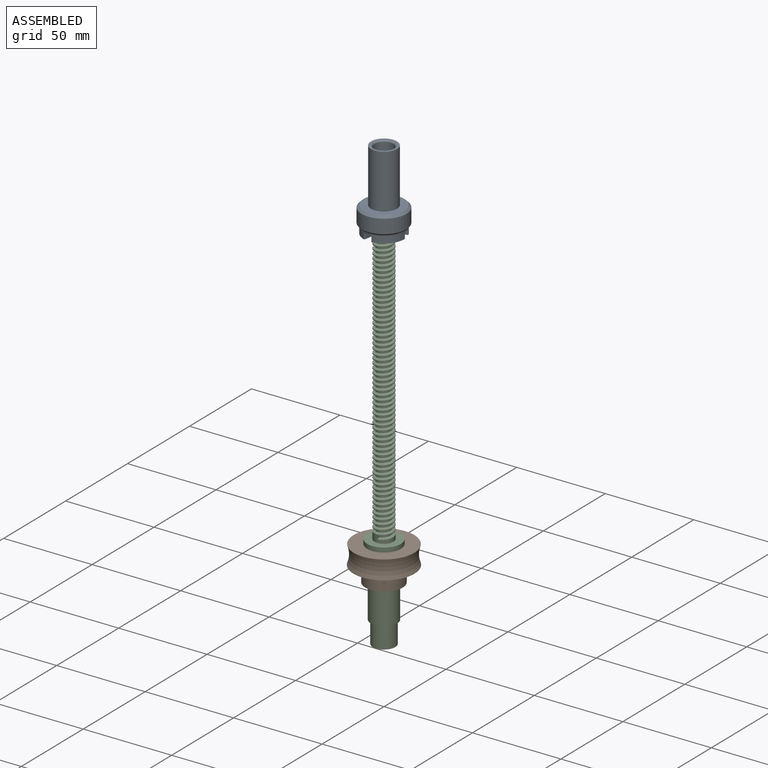
[diagram: assembled view]
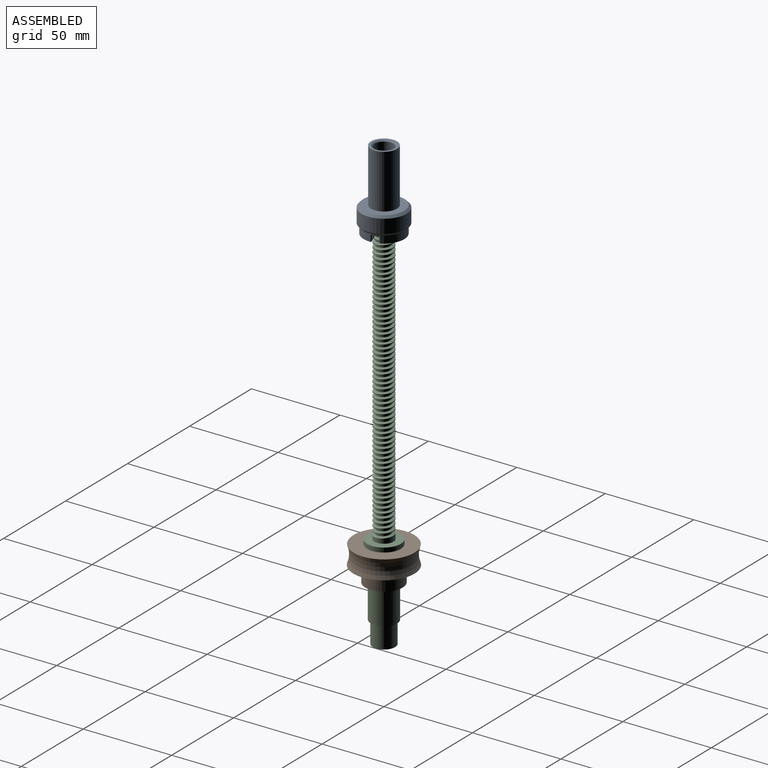
[diagram: assembled view, second angle]
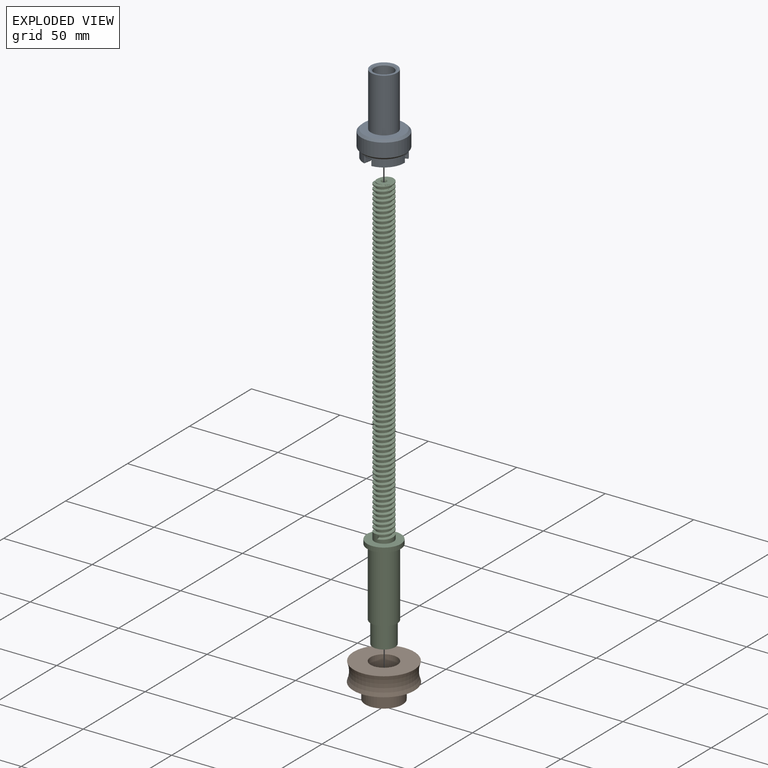
[diagram: exploded view]
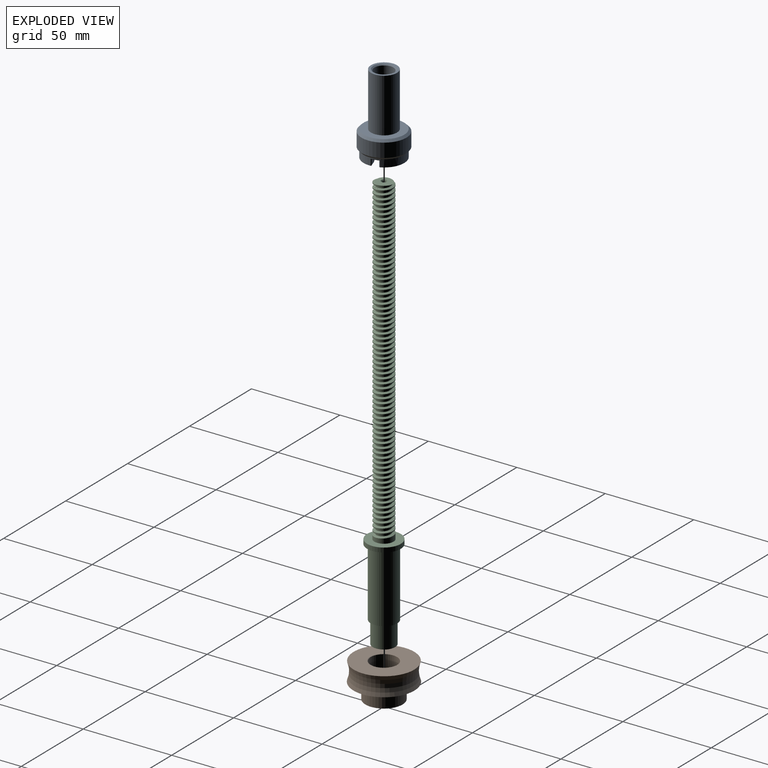
[diagram: exploded view, second angle]
ASSEMBLY  parts=3 mates=2
PART A: 60 faces, bbox 46x25.4x25.4 mm
  f0: cylinder r=11.48mm len=22.96mm, axis (-1,0,0), area 245.8mm2, adj f1,f2,f7,f8,f27,f29,f31,f41
  f1: plane 15.68x9.13mm, normal (-1,0,0), area 60.4mm2, adj f0,f31,f33,f35,f40,f44
  f2: plane 15.81x5.23mm, normal (-1,0,0), area 51.7mm2, adj f0,f4,f25,f27,f37,f41
  f3: cone r=5.38mm half-angle=53.5deg, axis (-1,0,0), area 25.5mm2, adj f6,f32,f35,f39
  f4: cone r=5.38mm half-angle=53.5deg, axis (-1,0,0), area 19.9mm2, adj f2,f6,f24,f25,f37,f38
  f5: cone r=5.38mm half-angle=53.5deg, axis (-1,0,0), area 25.5mm2, adj f6,f54,f55,f59
  f6: cylinder r=5.38mm len=42.62mm, axis (-1,0,0), area 1413.2mm2, adj f3,f4,f5,f9,f24,f26,f28,f30
  f7: cone r=11.48mm half-angle=45deg, axis (1,0,0), area 131mm2, adj f0,f14
  f8: plane 15.68x9.13mm, normal (-1,0,0), area 60.4mm2, adj f0,f49,f52,f53,f56,f59
  f9: cone r=6.07mm half-angle=45deg, axis (1,0,0), area 34.9mm2, adj f6,f10
  f10: plane 14.73x14.73mm, normal (1,0,0), area 54.7mm2, adj f9,f11
  f11: cylinder r=7.37mm len=30.48mm, axis (-1,0,0), area 1410.7mm2, adj f10,f12
  f12: plane 22.96x22.96mm, normal (1,0,0), area 243.6mm2, adj f11,f13
  f13: cone r=12.7mm half-angle=45deg, axis (-1,0,0), area 131mm2, adj f12,f14
  f14: cylinder r=12.7mm len=25.4mm, axis (-1,0,0), area 626.3mm2, adj f7,f13
  f15: plane 5.38x3.7mm, normal (-1,0,0), area 18.9mm2, adj f16,f17,f44,f47,f48,f52
  f16: plane 5.32x2.83mm, normal (0,1,0), area 13.4mm2, adj f15,f47,f51,f52,f55,f56
  f17: plane 5.31x2.83mm, normal (0,-1,0), area 13.4mm2, adj f15,f39,f40,f43,f44,f47
  f18: plane 6.77x5.58mm, normal (-1,0,0), area 18.9mm2, adj f19,f20,f41,f45,f46,f49
  f19: plane 4.47x2.8mm, normal (0,0.5,-0.87), area 13.1mm2, adj f18,f46,f49,f50,f53,f54
  f20: plane 4.82x2.87mm, normal (0,-0.5,0.87), area 14mm2, adj f18,f37,f38,f41,f42,f46
  f21: plane 6.77x5.58mm, normal (-1,0,0), area 18.9mm2, adj f22,f23,f27,f28,f29,f31
  f22: plane 4.47x2.8mm, normal (0,-0.5,-0.87), area 13.1mm2, adj f21,f28,f30,f31,f32,f33
  f23: plane 4.82x2.87mm, normal (0,0.5,0.87), area 14mm2, adj f21,f24,f25,f26,f27,f28
  f24: bspline ~4.4x3.43mm, area 1.8mm2, adj f4,f6,f23,f25,f26
  f25: cylinder r=0.51mm len=3.8mm, axis (0,-0.87,0.5), area 3mm2, adj f2,f4,f23,f24,f27
  f26: cylinder r=0.51mm len=2.14mm, axis (-1,0,0), area 0.9mm2, adj f6,f23,f24,f28
  f27: cylinder r=0.51mm len=3.81mm, axis (-1,0,0), area 3.1mm2, adj f0,f2,f21,f23,f25,f29
  f28: torus R=5.89mm, axis (-1,0,0), area 3.2mm2, adj f6,f21,f22,f23,f26,f30
  f29: torus R=10.97mm, axis (-1,0,0), area 3.5mm2, adj f0,f21,f27,f31
  f30: cylinder r=0.51mm len=2.15mm, axis (-1,0,0), area 1.2mm2, adj f6,f22,f28,f32
  f31: cylinder r=0.51mm len=3.81mm, axis (-1,0,0), area 2.9mm2, adj f0,f1,f21,f22,f29,f33
  f32: bspline ~3.98x3.56mm, area 1.9mm2, adj f3,f6,f22,f30,f34
  f33: cylinder r=0.51mm len=3.49mm, axis (0,0.87,-0.5), area 2.8mm2, adj f1,f22,f31,f34
  f34: sphere r=0.51mm, area 0.1mm2, adj f32,f33,f35
  f35: torus R=7.79mm, axis (1,0,0), area 4mm2, adj f1,f3,f34,f36
  f36: sphere r=0.51mm, area 0.1mm2, adj f35,f39,f40
  f37: cylinder r=0.51mm len=3.8mm, axis (0,-0.87,-0.5), area 3mm2, adj f2,f4,f20,f38,f41
  f38: bspline ~4.69x3.65mm, area 1.8mm2, adj f4,f6,f20,f37,f42
  f39: bspline ~4.46x3.33mm, area 1.8mm2, adj f3,f6,f17,f36,f43
  f40: cylinder r=0.51mm len=3.8mm, axis (0,0,-1), area 2.8mm2, adj f1,f17,f36,f44
  f41: cylinder r=0.51mm len=3.81mm, axis (-1,0,0), area 3.1mm2, adj f0,f2,f18,f20,f37,f45
  f42: cylinder r=0.51mm len=2.14mm, axis (-1,0,0), area 0.9mm2, adj f6,f20,f38,f46
  f43: cylinder r=0.51mm len=2.14mm, axis (-1,0,0), area 1.1mm2, adj f6,f17,f39,f47
  f44: cylinder r=0.51mm len=3.81mm, axis (-1,0,0), area 3mm2, adj f0,f1,f15,f17,f40,f48
  f45: torus R=10.97mm, axis (-1,0,0), area 3.5mm2, adj f0,f18,f41,f49
  f46: torus R=5.89mm, axis (-1,0,0), area 3.2mm2, adj f6,f18,f19,f20,f42,f50
  f47: torus R=5.89mm, axis (-1,0,0), area 3.2mm2, adj f6,f15,f16,f17,f43,f51
  f48: torus R=10.97mm, axis (-1,0,0), area 3.5mm2, adj f0,f15,f44,f52
  f49: cylinder r=0.51mm len=3.81mm, axis (-1,0,0), area 2.9mm2, adj f0,f8,f18,f19,f45,f53
  f50: cylinder r=0.51mm len=2.15mm, axis (-1,0,0), area 1.2mm2, adj f6,f19,f46,f54
  f51: cylinder r=0.51mm len=2.14mm, axis (-1,0,0), area 1.1mm2, adj f6,f16,f47,f55
  f52: cylinder r=0.51mm len=3.81mm, axis (-1,0,0), area 3mm2, adj f0,f8,f15,f16,f48,f56
  f53: cylinder r=0.51mm len=3.49mm, axis (0,0.87,0.5), area 2.8mm2, adj f8,f19,f49,f57
  f54: bspline ~3.98x3.56mm, area 1.9mm2, adj f5,f6,f19,f50,f57
  f55: bspline ~4.68x3.49mm, area 1.8mm2, adj f5,f6,f16,f51,f58
  f56: cylinder r=0.51mm len=3.8mm, axis (0,0,1), area 2.8mm2, adj f8,f16,f52,f58
  f57: sphere r=0.51mm, area 0.1mm2, adj f53,f54,f59
  f58: sphere r=0.51mm, area 0.1mm2, adj f55,f56,f59
  f59: torus R=7.79mm, axis (1,0,0), area 4mm2, adj f5,f8,f57,f58
PART B: 7 faces, bbox 44.3x24.9x44.3 mm
  f0: plane 34.21x34.21mm, normal (0,1,0), area 730.4mm2, adj f1,f6
  f1: torus R=31.02mm, axis (0,-1,0), area 1131.6mm2, adj f0,f2
  f2: plane 34.44x34.44mm, normal (0,-1,0), area 582.6mm2, adj f1,f3
  f3: cylinder r=10.54mm len=21.08mm, axis (0,-1,0), area 588.8mm2, adj f2,f4
  f4: plane 21.08x21.08mm, normal (0,-1,0), area 172.6mm2, adj f3,f5
  f5: cylinder r=7.5mm len=19.41mm, axis (0,-1,0), area 914.2mm2, adj f4,f6
  f6: cone r=7.75mm half-angle=60deg, axis (0,1,0), area 14mm2, adj f0,f5
PART C: 89 faces, bbox 237.8x19.5x19.5 mm
  f0: cylinder r=5.37mm len=10.74mm, axis (1,0,0), area 118.2mm2, adj f70,f74,f86,f87,f88
  f1: cylinder r=5.37mm len=10.74mm, axis (1,0,0), area 11.3mm2, adj f2,f73,f86,f87
  f2: cylinder r=5.37mm len=10.74mm, axis (1,0,0), area 17.8mm2, adj f1,f3,f86,f87
  f3: cylinder r=5.37mm len=10.74mm, axis (1,0,0), area 17.8mm2, adj f2,f4,f86,f87
  f4: cylinder r=5.37mm len=10.74mm, axis (1,0,0), area 17.8mm2, adj f3,f5,f86,f87
  f5: cylinder r=5.37mm len=10.74mm, axis (1,0,0), area 17.8mm2, adj f4,f6,f86,f87
  f6: cylinder r=5.37mm len=10.74mm, axis (1,0,0), area 17.8mm2, adj f5,f7,f86,f87
  f7: cylinder r=5.37mm len=10.74mm, axis (1,0,0), area 17.8mm2, adj f6,f8,f86,f87
  f8: cylinder r=5.37mm len=10.74mm, axis (1,0,0), area 17.8mm2, adj f7,f9,f86,f87
  f9: cylinder r=5.37mm len=10.74mm, axis (1,0,0), area 17.8mm2, adj f8,f10,f86,f87
  f10: cylinder r=5.37mm len=10.74mm, axis (1,0,0), area 17.8mm2, adj f9,f11,f86,f87
  f11: cylinder r=5.37mm len=10.74mm, axis (1,0,0), area 17.8mm2, adj f10,f12,f86,f87
  f12: cylinder r=5.37mm len=10.74mm, axis (1,0,0), area 17.8mm2, adj f11,f13,f86,f87
  f13: cylinder r=5.37mm len=10.74mm, axis (1,0,0), area 17.8mm2, adj f12,f14,f86,f87
  f14: cylinder r=5.37mm len=10.74mm, axis (1,0,0), area 17.8mm2, adj f13,f15,f86,f87
  f15: cylinder r=5.37mm len=10.74mm, axis (1,0,0), area 17.8mm2, adj f14,f16,f86,f87
  f16: cylinder r=5.37mm len=10.74mm, axis (1,0,0), area 17.8mm2, adj f15,f17,f86,f87
  f17: cylinder r=5.37mm len=10.74mm, axis (1,0,0), area 17.8mm2, adj f16,f18,f86,f87
  f18: cylinder r=5.37mm len=10.74mm, axis (1,0,0), area 17.8mm2, adj f17,f19,f86,f87
  f19: cylinder r=5.37mm len=10.74mm, axis (1,0,0), area 17.8mm2, adj f18,f20,f86,f87
  f20: cylinder r=5.37mm len=10.74mm, axis (1,0,0), area 17.8mm2, adj f19,f21,f86,f87
  f21: cylinder r=5.37mm len=10.74mm, axis (1,0,0), area 17.8mm2, adj f20,f22,f86,f87
  f22: cylinder r=5.37mm len=10.74mm, axis (1,0,0), area 17.8mm2, adj f21,f23,f86,f87
  f23: cylinder r=5.37mm len=10.74mm, axis (1,0,0), area 17.8mm2, adj f22,f24,f86,f87
  f24: cylinder r=5.37mm len=10.74mm, axis (1,0,0), area 17.8mm2, adj f23,f25,f86,f87
  f25: cylinder r=5.37mm len=10.74mm, axis (1,0,0), area 17.8mm2, adj f24,f26,f86,f87
  f26: cylinder r=5.37mm len=10.74mm, axis (1,0,0), area 17.8mm2, adj f25,f27,f86,f87
  f27: cylinder r=5.37mm len=10.74mm, axis (1,0,0), area 17.8mm2, adj f26,f28,f86,f87
  f28: cylinder r=5.37mm len=10.74mm, axis (1,0,0), area 17.8mm2, adj f27,f29,f86,f87
  f29: cylinder r=5.37mm len=10.74mm, axis (1,0,0), area 17.8mm2, adj f28,f30,f86,f87
  f30: cylinder r=5.37mm len=10.74mm, axis (1,0,0), area 17.8mm2, adj f29,f31,f86,f87
  f31: cylinder r=5.37mm len=10.74mm, axis (1,0,0), area 17.8mm2, adj f30,f32,f86,f87
  f32: cylinder r=5.37mm len=10.74mm, axis (1,0,0), area 17.8mm2, adj f31,f33,f86,f87
  f33: cylinder r=5.37mm len=10.74mm, axis (1,0,0), area 17.8mm2, adj f32,f34,f86,f87
  f34: cylinder r=5.37mm len=10.74mm, axis (1,0,0), area 17.8mm2, adj f33,f35,f86,f87
  f35: cylinder r=5.37mm len=10.74mm, axis (1,0,0), area 17.8mm2, adj f34,f36,f86,f87
  f36: cylinder r=5.37mm len=10.74mm, axis (1,0,0), area 17.8mm2, adj f35,f37,f86,f87
  f37: cylinder r=5.37mm len=10.74mm, axis (1,0,0), area 17.8mm2, adj f36,f38,f86,f87
  f38: cylinder r=5.37mm len=10.74mm, axis (1,0,0), area 17.8mm2, adj f37,f39,f86,f87
  f39: cylinder r=5.37mm len=10.74mm, axis (1,0,0), area 17.8mm2, adj f38,f40,f86,f87
  f40: cylinder r=5.37mm len=10.74mm, axis (1,0,0), area 17.8mm2, adj f39,f41,f86,f87
  f41: cylinder r=5.37mm len=10.74mm, axis (1,0,0), area 17.8mm2, adj f40,f42,f86,f87
  f42: cylinder r=5.37mm len=10.74mm, axis (1,0,0), area 17.8mm2, adj f41,f43,f86,f87
  f43: cylinder r=5.37mm len=10.74mm, axis (1,0,0), area 17.8mm2, adj f42,f44,f86,f87
  f44: cylinder r=5.37mm len=10.74mm, axis (1,0,0), area 17.8mm2, adj f43,f45,f86,f87
  f45: cylinder r=5.37mm len=10.74mm, axis (1,0,0), area 17.8mm2, adj f44,f46,f86,f87
  f46: cylinder r=5.37mm len=10.74mm, axis (1,0,0), area 17.8mm2, adj f45,f47,f86,f87
  f47: cylinder r=5.37mm len=10.74mm, axis (1,0,0), area 17.8mm2, adj f46,f48,f86,f87
  f48: cylinder r=5.37mm len=10.74mm, axis (1,0,0), area 17.8mm2, adj f47,f49,f86,f87
  f49: cylinder r=5.37mm len=10.74mm, axis (1,0,0), area 17.8mm2, adj f48,f50,f86,f87
  f50: cylinder r=5.37mm len=10.74mm, axis (1,0,0), area 17.8mm2, adj f49,f51,f86,f87
  f51: cylinder r=5.37mm len=10.74mm, axis (1,0,0), area 17.8mm2, adj f50,f52,f86,f87
  f52: cylinder r=5.37mm len=10.74mm, axis (1,0,0), area 17.8mm2, adj f51,f53,f86,f87
  f53: cylinder r=5.37mm len=10.74mm, axis (1,0,0), area 17.8mm2, adj f52,f54,f86,f87
  f54: cylinder r=5.37mm len=10.74mm, axis (1,0,0), area 17.8mm2, adj f53,f55,f86,f87
  f55: cylinder r=5.37mm len=10.74mm, axis (1,0,0), area 17.8mm2, adj f54,f56,f86,f87
  f56: cylinder r=5.37mm len=10.74mm, axis (1,0,0), area 17.8mm2, adj f55,f57,f86,f87
  f57: cylinder r=5.37mm len=10.74mm, axis (1,0,0), area 17.8mm2, adj f56,f58,f86,f87
  f58: cylinder r=5.37mm len=10.74mm, axis (1,0,0), area 17.8mm2, adj f57,f59,f86,f87
  f59: cylinder r=5.37mm len=10.74mm, axis (1,0,0), area 17.8mm2, adj f58,f60,f86,f87
  f60: cylinder r=5.37mm len=10.74mm, axis (1,0,0), area 17.8mm2, adj f59,f61,f86,f87
  f61: cylinder r=5.37mm len=10.74mm, axis (1,0,0), area 17.8mm2, adj f60,f62,f86,f87
  f62: cylinder r=5.37mm len=10.74mm, axis (1,0,0), area 17.8mm2, adj f61,f63,f86,f87
  f63: cylinder r=5.37mm len=10.74mm, axis (1,0,0), area 17.8mm2, adj f62,f64,f86,f87
  f64: cylinder r=5.37mm len=10.74mm, axis (1,0,0), area 17.8mm2, adj f63,f65,f86,f87
  f65: cylinder r=5.37mm len=10.74mm, axis (1,0,0), area 17.8mm2, adj f64,f66,f86,f87
  f66: cylinder r=5.37mm len=10.74mm, axis (1,0,0), area 17.8mm2, adj f65,f67,f86,f87
  f67: cylinder r=5.37mm len=10.74mm, axis (1,0,0), area 17.8mm2, adj f66,f68,f86,f87
  f68: cylinder r=5.37mm len=10.74mm, axis (1,0,0), area 17.8mm2, adj f67,f69,f86,f87
  f69: cylinder r=5.37mm len=10.74mm, axis (1,0,0), area 17.8mm2, adj f68,f70,f86,f87
  f70: cylinder r=5.37mm len=10.74mm, axis (1,0,0), area 17.8mm2, adj f0,f69,f86,f87
  f71: cylinder r=6.35mm len=12.7mm, axis (1,0,0), area 496.6mm2, adj f72,f78
  f72: plane 12.7x12.7mm, normal (-1,0,0), area 95mm2, adj f71,f80
  f73: plane 9.81x9.76mm, normal (1,0,0), area 58.5mm2, adj f1,f83,f85,f86,f87
  f74: plane 19.07x19.07mm, normal (1,0,0), area 194.9mm2, adj f0,f75
  f75: cylinder r=9.53mm len=19.07mm, axis (1,0,0), area 152.2mm2, adj f74,f76
  f76: plane 19.07x19.07mm, normal (-1,0,0), area 108.8mm2, adj f75,f77
  f77: cylinder r=7.5mm len=38.61mm, axis (1,0,0), area 1819.8mm2, adj f76,f78
  f78: plane 15x15mm, normal (-1,0,0), area 50.1mm2, adj f71,f77
  f79: cylinder r=2.54mm len=36.56mm, axis (-1,0,0), area 583.5mm2, adj f80,f81
  f80: cone r=2.54mm half-angle=22.4deg, axis (-1,0,0), area 29.9mm2, adj f72,f79
  f81: cone r=0mm half-angle=59deg, axis (-1,0,0), area 23.6mm2, adj f79
  f82: cylinder r=1.27mm len=3.68mm, axis (1,0,0), area 29.3mm2, adj f83,f84
  f83: cone r=1.27mm half-angle=22.4deg, axis (1,0,0), area 7.5mm2, adj f73,f82
  f84: cone r=0mm half-angle=59deg, axis (1,0,0), area 5.9mm2, adj f82
  f85: cylinder r=4.01mm len=180.54mm, axis (1,0,0), area 2831.7mm2, adj f73,f86,f87,f88
  f86: bspline ~181.69x12.41mm, area 3057.3mm2, adj f0,f1,f2,f3,f4,f5,f6,f7
  f87: bspline ~180.42x12.41mm, area 3034.5mm2, adj f0,f1,f2,f3,f4,f5,f6,f7
  f88: plane 2.01x1.36mm, normal (0,0,1), area 2.1mm2, adj f0,f85,f86,f87
PLACE A rot(axis=(-0.33,-0.88,-0.33),97.1deg) t=(0,0,273.68)mm
PLACE B rot(axis=(1,0,0),90deg) t=(0,0,27.94)mm
PLACE C rot(axis=(0.71,0,0.71),180deg) t=(0,0,27.3)mm
MATE fastened B.f1 <-> C.f0  axis (0,0,1) through (0,0,38.61)mm
MATE cylindrical A.f0 <-> C.f0  axis (0,0,-1) through (0,0,199)mm
